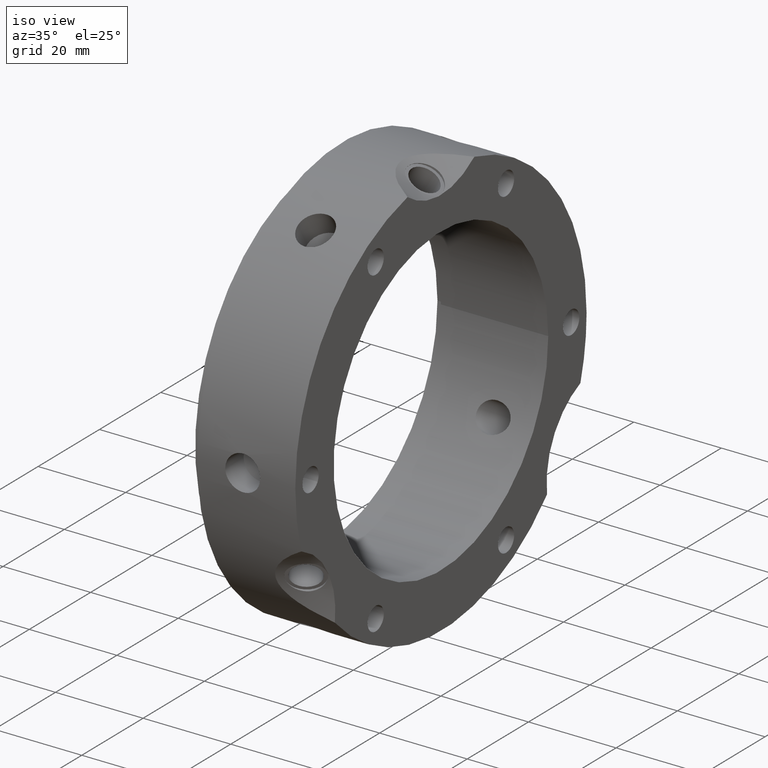
[diagram: clean part render]
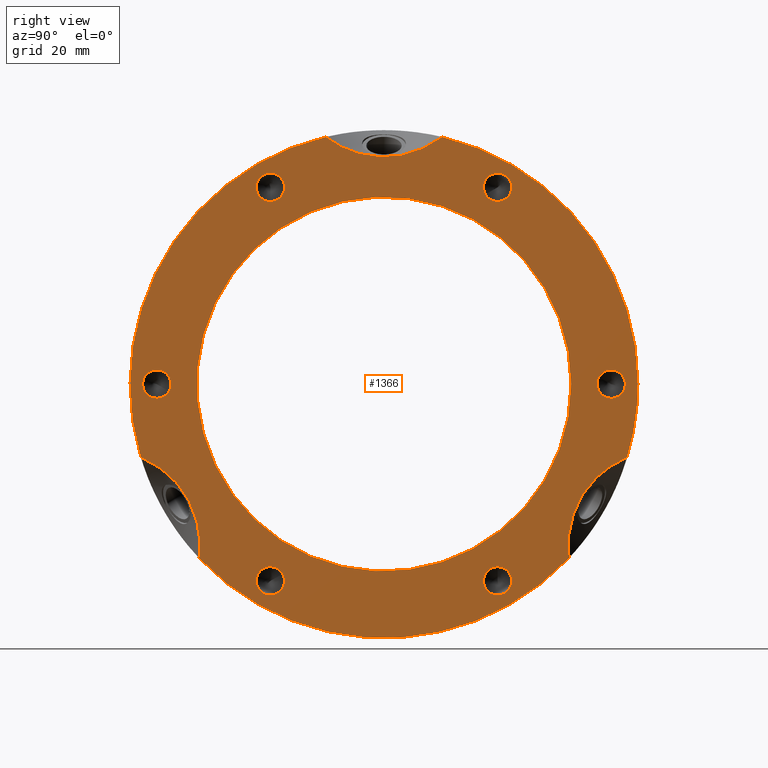
[diagram: tour spotlight — one face highlighted and labeled with its STEP entity id]
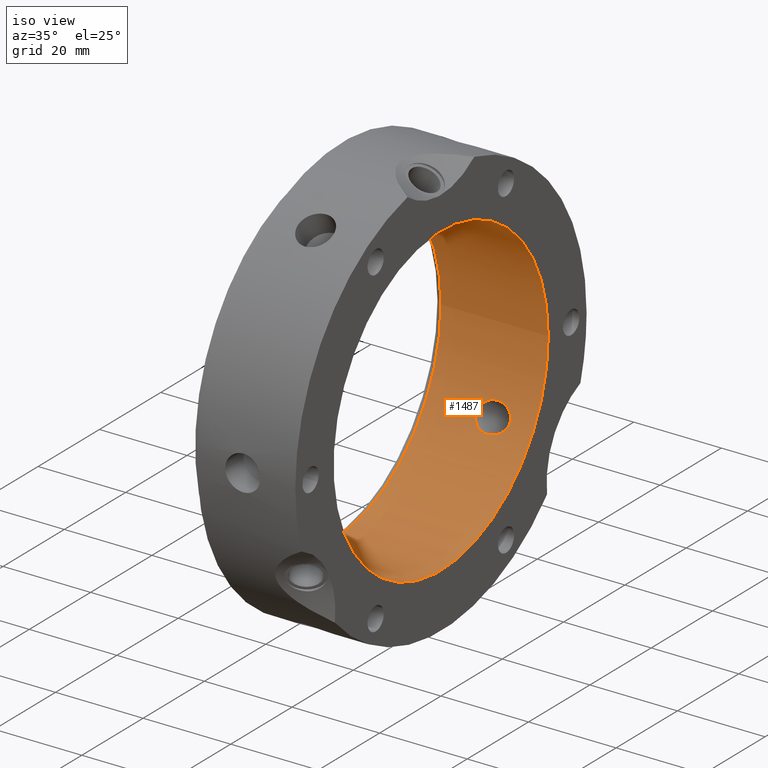
[diagram: tour spotlight — one face highlighted and labeled with its STEP entity id]
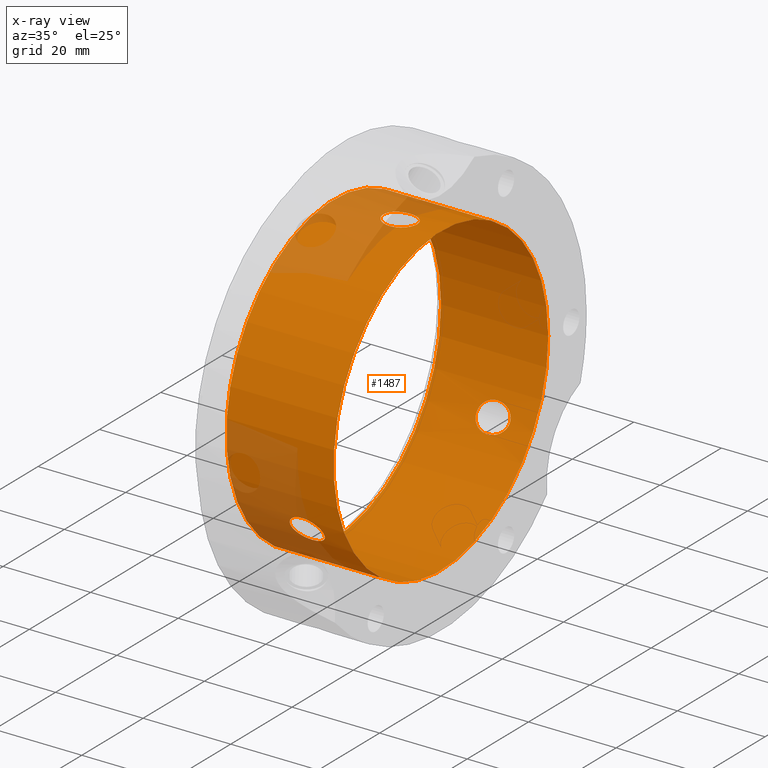
[diagram: x-ray of the same camera — body ghosted, this tour face saturated]
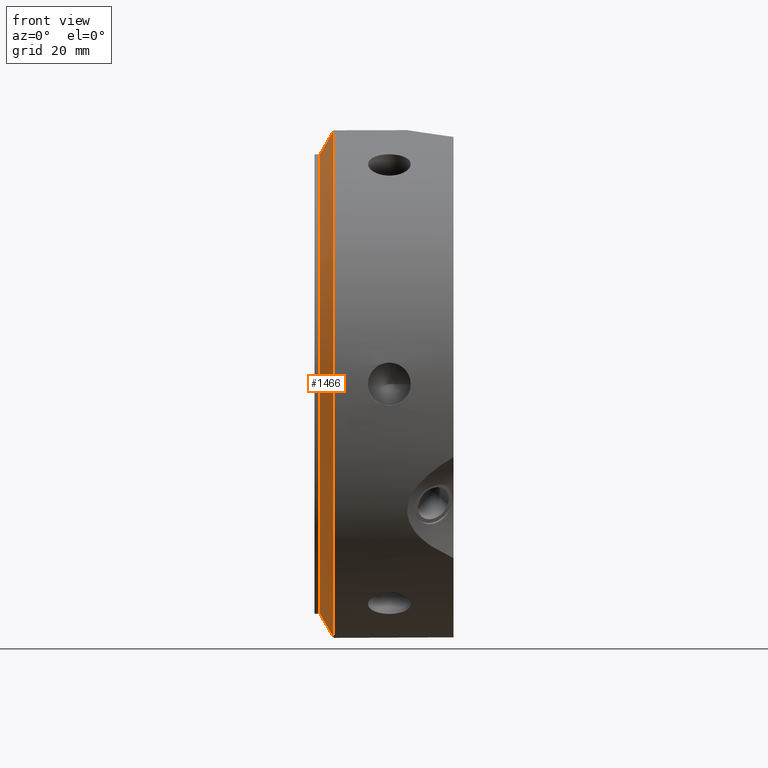
[diagram: tour spotlight — one face highlighted and labeled with its STEP entity id]
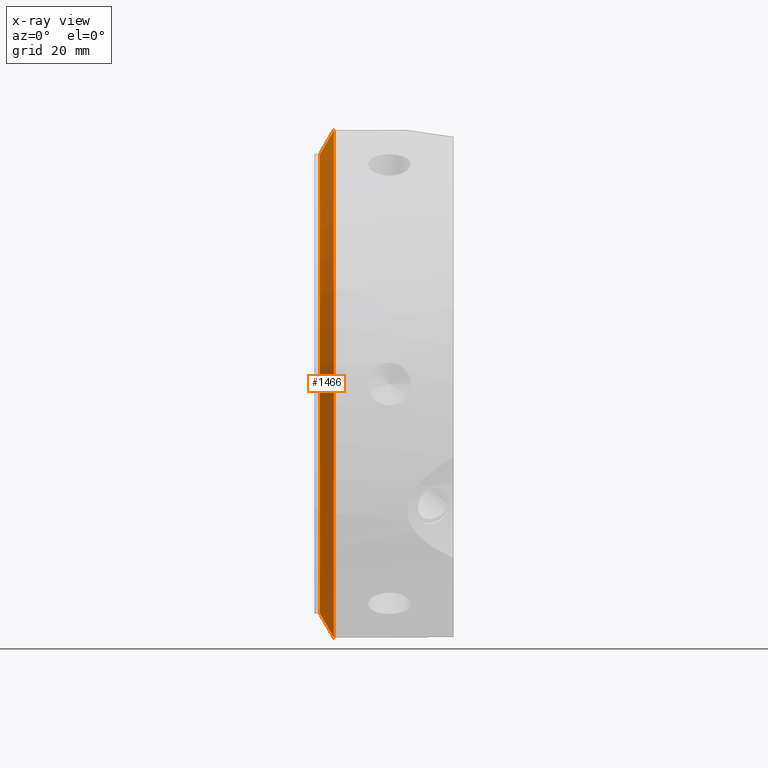
[diagram: x-ray of the same camera — body ghosted, this tour face saturated]
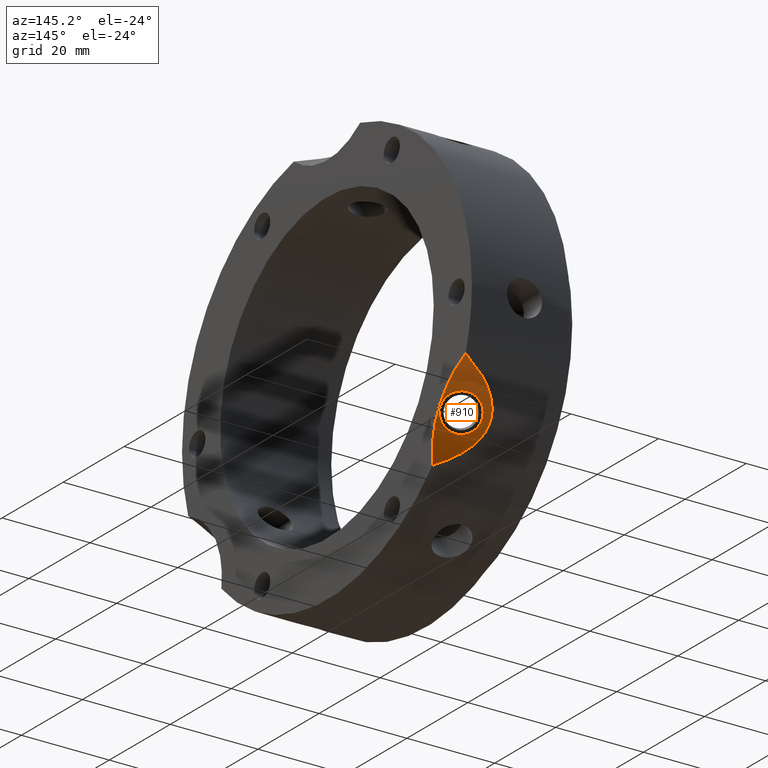
[diagram: tour spotlight — one face highlighted and labeled with its STEP entity id]
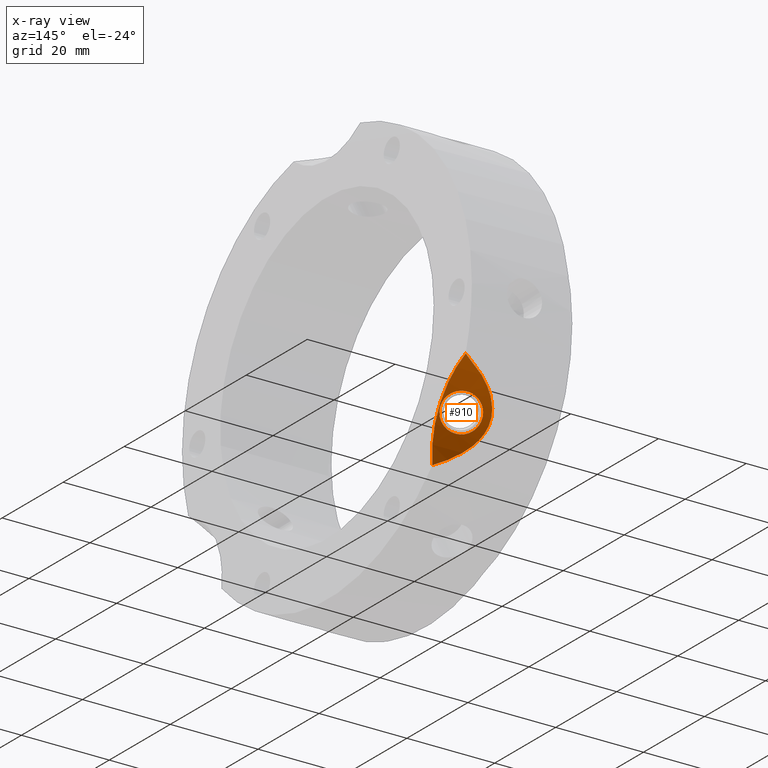
[diagram: x-ray of the same camera — body ghosted, this tour face saturated]
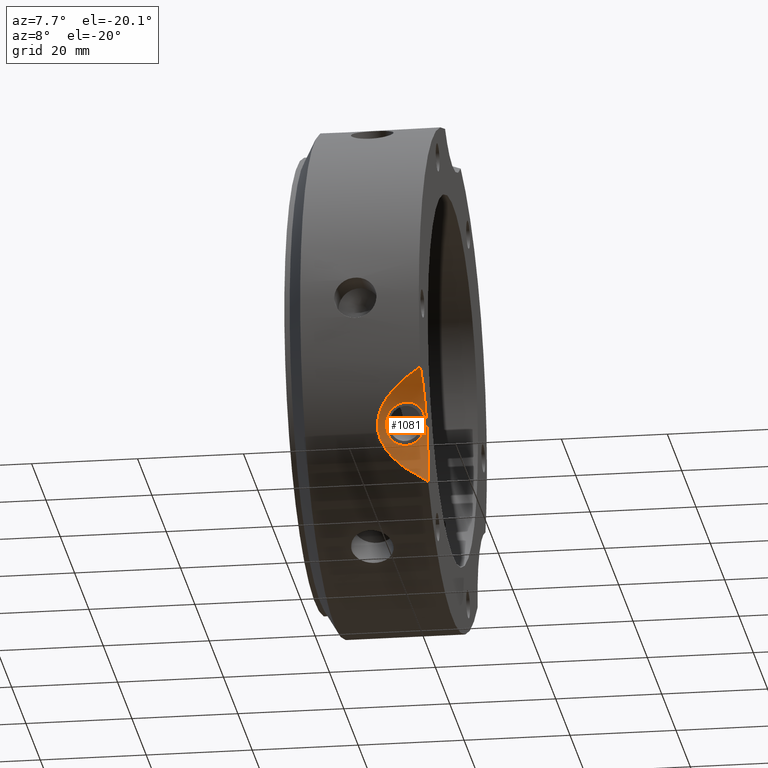
[diagram: tour spotlight — one face highlighted and labeled with its STEP entity id]
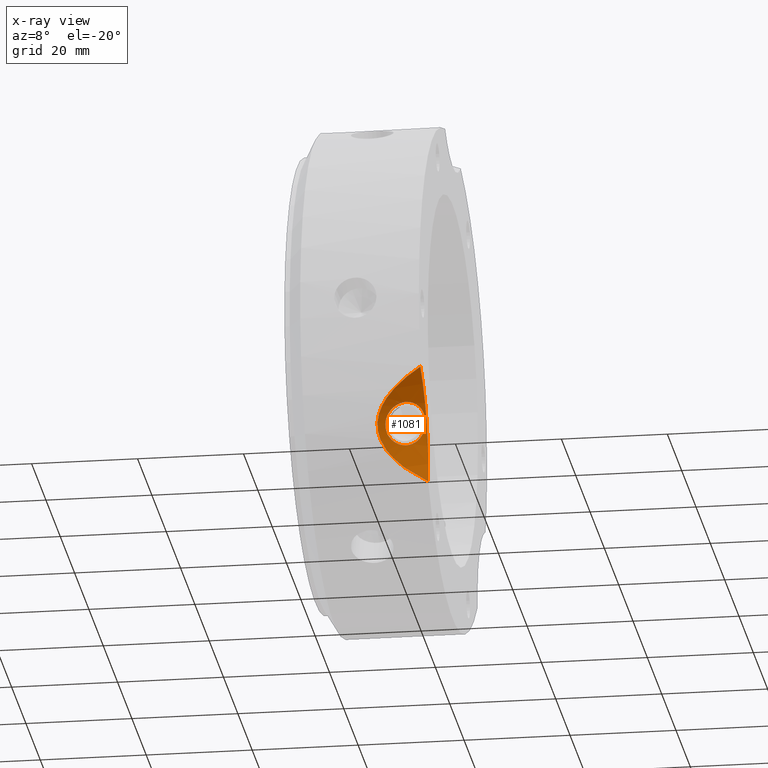
[diagram: x-ray of the same camera — body ghosted, this tour face saturated]
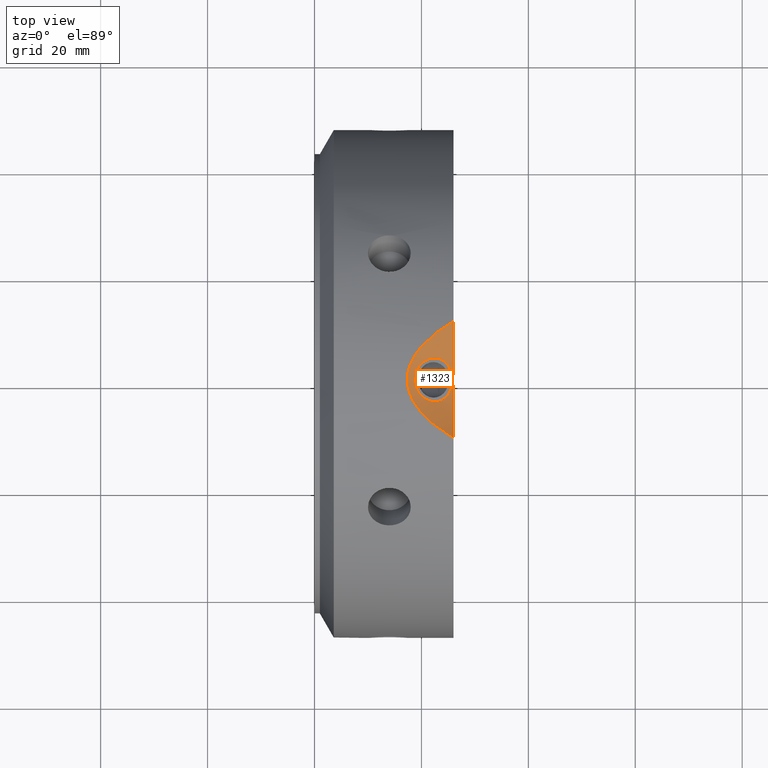
[diagram: tour spotlight — one face highlighted and labeled with its STEP entity id]
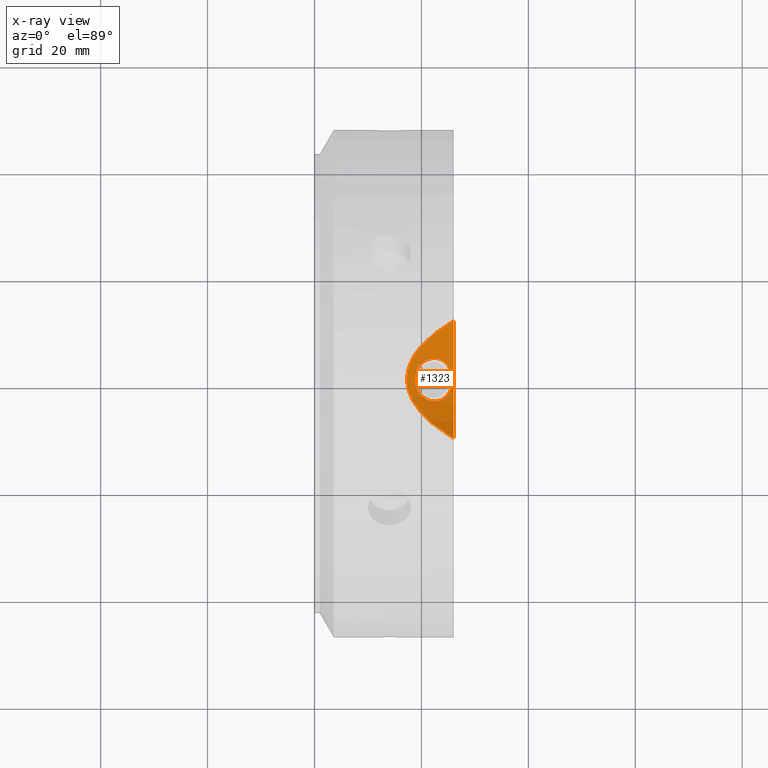
[diagram: x-ray of the same camera — body ghosted, this tour face saturated]
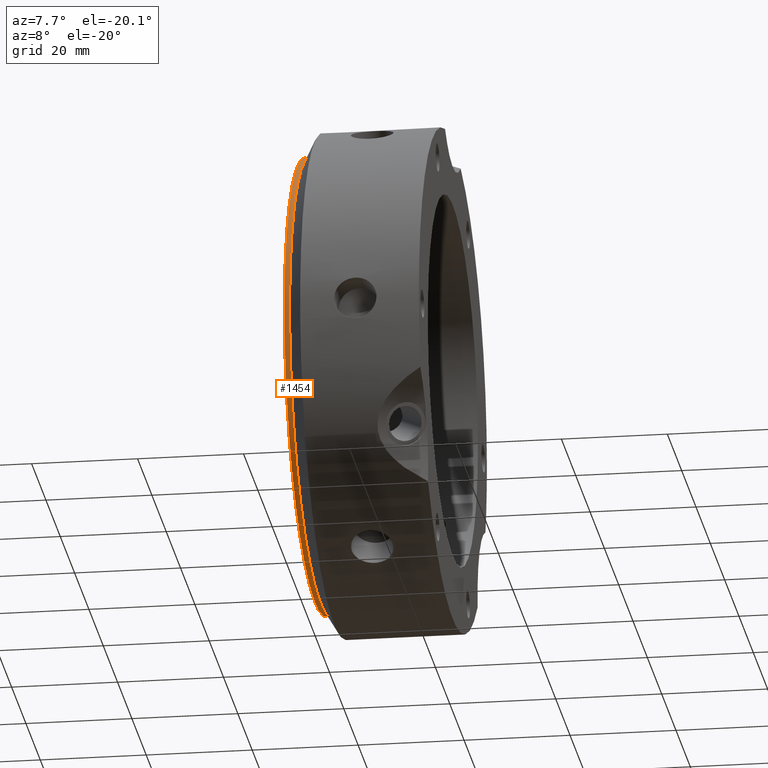
[diagram: tour spotlight — one face highlighted and labeled with its STEP entity id]
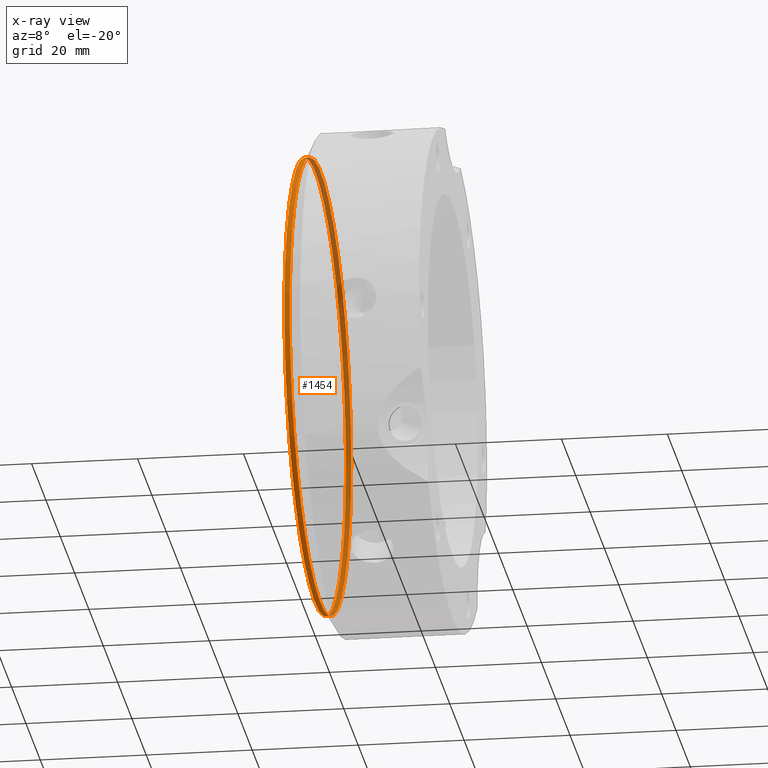
[diagram: x-ray of the same camera — body ghosted, this tour face saturated]
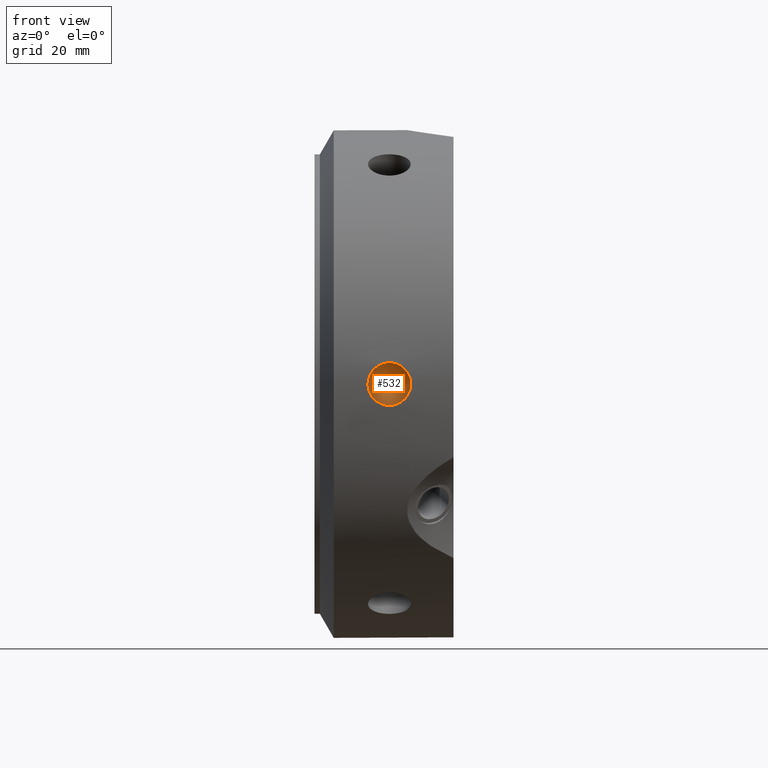
[diagram: tour spotlight — one face highlighted and labeled with its STEP entity id]
A machine part: a face-by-face anatomy tour. The part has 44 B-rep faces; the first image is the clean iso view, then the 8 largest visible faces are spotlighted one at a time (largest first), each with its STEP entity span.

Face 1 — right view, entity #1366. In plain terms, the highlighted planar face has unit normal (1, 0, 0).
Definition (entity closure, byte-faithful):
#165=CARTESIAN_POINT('',(25.999999999999986,18.95503267997125,35.481079660838645));
#166=VERTEX_POINT('',#165);
#167=CARTESIAN_POINT('',(25.999999999999986,21.250000000000018,36.806079660838641));
#168=DIRECTION('',(-1.0,0.0,0.0));
#169=DIRECTION('',(0.0,-0.866025403784439,-0.499999999999999));
#170=AXIS2_PLACEMENT_3D('',#167,#168,#169);
#171=CIRCLE('',#170,2.65);
#172=EDGE_CURVE('',#166,#166,#171,.T.);
#277=CARTESIAN_POINT('',(25.999999999999986,40.205032679971247,1.325000000000001));
#278=VERTEX_POINT('',#277);
#279=CARTESIAN_POINT('',(25.999999999999986,42.500000000000007,0.0));
#280=DIRECTION('',(-1.0,0.0,0.0));
#281=DIRECTION('',(0.0,-0.866025403784438,0.5));
#282=AXIS2_PLACEMENT_3D('',#279,#280,#281);
#283=CIRCLE('',#282,2.65);
#284=EDGE_CURVE('',#278,#278,#283,.T.);
#389=CARTESIAN_POINT('',(25.999999999999986,21.250000000000018,-34.156079660838643));
#390=VERTEX_POINT('',#389);
#391=CARTESIAN_POINT('',(25.999999999999986,21.250000000000018,-36.806079660838648));
#392=DIRECTION('',(-1.0,0.0,0.0));
#393=DIRECTION('',(0.0,0.0,1.0));
#394=AXIS2_PLACEMENT_3D('',#391,#392,#393);
#395=CIRCLE('',#394,2.65);
#396=EDGE_CURVE('',#390,#390,#395,.T.);
#501=CARTESIAN_POINT('',(25.999999999999986,-18.955032679971232,-35.48107966083866));
#502=VERTEX_POINT('',#501);
#503=CARTESIAN_POINT('',(25.999999999999986,-21.249999999999996,-36.806079660838655));
#504=DIRECTION('',(-1.0,0.0,0.0));
#505=DIRECTION('',(0.0,0.866025403784439,0.5));
#506=AXIS2_PLACEMENT_3D('',#503,#504,#505);
#507=CIRCLE('',#506,2.65);
#508=EDGE_CURVE('',#502,#502,#507,.T.);
#613=CARTESIAN_POINT('',(25.999999999999986,-40.205032679971247,-1.325000000000016));
#614=VERTEX_POINT('',#613);
#615=CARTESIAN_POINT('',(25.999999999999986,-42.500000000000007,-1.554312E-014));
#616=DIRECTION('',(-1.0,0.0,0.0));
#617=DIRECTION('',(0.0,0.866025403784438,-0.5));
#618=AXIS2_PLACEMENT_3D('',#615,#616,#617);
#619=CIRCLE('',#618,2.65);
#620=EDGE_CURVE('',#614,#614,#619,.T.);
#650=CARTESIAN_POINT('',(25.999999999999986,-21.250000000000021,34.156079660838635));
#651=VERTEX_POINT('',#650);
#652=CARTESIAN_POINT('',(25.999999999999986,-21.250000000000021,36.806079660838634));
#653=DIRECTION('',(-1.0,0.0,0.0));
#654=DIRECTION('',(0.0,0.0,-1.0));
#655=AXIS2_PLACEMENT_3D('',#652,#653,#654);
#656=CIRCLE('',#655,2.65);
#657=EDGE_CURVE('',#651,#651,#656,.T.);
#873=CARTESIAN_POINT('',(25.999999999999986,34.587556014336464,-32.556888195205907));
#874=VERTEX_POINT('',#873);
#875=CARTESIAN_POINT('',(25.999999999999982,45.488870252386242,-13.6752580656297));
#876=VERTEX_POINT('',#875);
#877=CARTESIAN_POINT('',(25.999999999999986,56.806079660838648,-32.797005383792552));
#878=DIRECTION('',(-1.0,0.0,0.0));
#879=DIRECTION('',(0.0,-0.866025403784438,0.5));
#880=AXIS2_PLACEMENT_3D('',#877,#878,#879);
#881=ELLIPSE('',#880,23.094010767585043,20.0);
#882=EDGE_CURVE('',#874,#876,#881,.T.);
#1044=CARTESIAN_POINT('',(25.999999999999986,-45.488870252386249,-13.675258065629665));
#1045=VERTEX_POINT('',#1044);
#1046=CARTESIAN_POINT('',(25.999999999999986,-34.587556014336464,-32.556888195205907));
#1047=VERTEX_POINT('',#1046);
#1048=CARTESIAN_POINT('',(25.999999999999986,-56.806079660838662,-32.797005383792516));
#1049=DIRECTION('',(-1.0,0.0,0.0));
#1050=DIRECTION('',(0.0,0.866025403784439,0.5));
#1051=AXIS2_PLACEMENT_3D('',#1048,#1049,#1050);
#1052=ELLIPSE('',#1051,23.094010767585047,20.000000000000004);
#1053=EDGE_CURVE('',#1045,#1047,#1052,.T.);
#1123=CARTESIAN_POINT('',(25.999999999999986,0.0,0.0));
#1124=DIRECTION('',(1.0,0.0,0.0));
#1125=DIRECTION('',(0.0,1.0,0.0));
#1126=AXIS2_PLACEMENT_3D('',#1123,#1124,#1125);
#1127=CIRCLE('',#1126,47.5);
#1128=EDGE_CURVE('',#1047,#874,#1127,.T.);
#1131=CARTESIAN_POINT('',(25.999999999999986,-10.901314238049778,46.232146260835584));
#1132=VERTEX_POINT('',#1131);
#1133=CARTESIAN_POINT('',(25.999999999999986,0.0,0.0));
#1134=DIRECTION('',(1.0,0.0,0.0));
#1135=DIRECTION('',(0.0,1.0,0.0));
#1136=AXIS2_PLACEMENT_3D('',#1133,#1134,#1135);
#1137=CIRCLE('',#1136,47.5);
#1138=EDGE_CURVE('',#1132,#1045,#1137,.T.);
#1140=CARTESIAN_POINT('',(25.999999999999986,10.901314238049778,46.232146260835584));
#1141=VERTEX_POINT('',#1140);
#1167=CARTESIAN_POINT('',(25.999999999999986,0.0,0.0));
#1168=DIRECTION('',(1.0,0.0,0.0));
#1169=DIRECTION('',(0.0,1.0,0.0));
#1170=AXIS2_PLACEMENT_3D('',#1167,#1168,#1169);
#1171=CIRCLE('',#1170,47.5);
#1172=EDGE_CURVE('',#876,#1141,#1171,.T.);
#1310=CARTESIAN_POINT('',(25.999999999999986,0.0,65.594010767585047));
#1311=DIRECTION('',(-1.0,0.0,0.0));
#1312=DIRECTION('',(0.0,0.0,-1.0));
#1313=AXIS2_PLACEMENT_3D('',#1310,#1311,#1312);
#1314=ELLIPSE('',#1313,23.094010767585047,20.0);
#1315=EDGE_CURVE('',#1141,#1132,#1314,.T.);
#1324=CARTESIAN_POINT('',(25.999999999999986,41.25,0.0));
#1325=DIRECTION('',(1.0,0.0,0.0));
#1326=DIRECTION('',(0.0,0.0,-1.0));
#1327=AXIS2_PLACEMENT_3D('',#1324,#1325,#1326);
#1328=PLANE('',#1327);
#1329=ORIENTED_EDGE('',*,*,#882,.T.);
#1330=ORIENTED_EDGE('',*,*,#1172,.T.);
#1331=ORIENTED_EDGE('',*,*,#1315,.T.);
#1332=ORIENTED_EDGE('',*,*,#1138,.T.);
#1333=ORIENTED_EDGE('',*,*,#1053,.T.);
#1334=ORIENTED_EDGE('',*,*,#1128,.T.);
#1335=EDGE_LOOP('',(#1329,#1330,#1331,#1332,#1333,#1334));
#1336=FACE_OUTER_BOUND('',#1335,.T.);
#1337=ORIENTED_EDGE('',*,*,#172,.T.);
#1338=EDGE_LOOP('',(#1337));
#1339=FACE_BOUND('',#1338,.T.);
#1340=ORIENTED_EDGE('',*,*,#284,.T.);
#1341=EDGE_LOOP('',(#1340));
#1342=FACE_BOUND('',#1341,.T.);
#1343=ORIENTED_EDGE('',*,*,#396,.T.);
#1344=EDGE_LOOP('',(#1343));
#1345=FACE_BOUND('',#1344,.T.);
#1346=ORIENTED_EDGE('',*,*,#508,.T.);
#1347=EDGE_LOOP('',(#1346));
#1348=FACE_BOUND('',#1347,.T.);
#1349=ORIENTED_EDGE('',*,*,#620,.T.);
#1350=EDGE_LOOP('',(#1349));
#1351=FACE_BOUND('',#1350,.T.);
#1352=ORIENTED_EDGE('',*,*,#657,.T.);
#1353=EDGE_LOOP('',(#1352));
#1354=FACE_BOUND('',#1353,.T.);
#1355=CARTESIAN_POINT('',(25.999999999999993,35.0,0.0));
#1356=VERTEX_POINT('',#1355);
#1357=CARTESIAN_POINT('',(25.999999999999993,0.0,0.0));
#1358=DIRECTION('',(1.0,0.0,0.0));
#1359=DIRECTION('',(0.0,1.0,0.0));
#1360=AXIS2_PLACEMENT_3D('',#1357,#1358,#1359);
#1361=CIRCLE('',#1360,35.0);
#1362=EDGE_CURVE('',#1356,#1356,#1361,.T.);
#1363=ORIENTED_EDGE('',*,*,#1362,.F.);
#1364=EDGE_LOOP('',(#1363));
#1365=FACE_BOUND('',#1364,.T.);
#1366=ADVANCED_FACE('',(#1336,#1339,#1342,#1345,#1348,#1351,#1354,#1365),#1328,.T.);

Face 2 — iso view, entity #1487. An x-ray twin of the same camera follows (body ghosted, this face saturated) — the face is partly hidden behind the body. In plain terms, the highlighted cylindrical surface (bore or boss wall) has radius 35 mm, axis along (1, 0, 0).
Definition (entity closure, byte-faithful):
#745=CARTESIAN_POINT('',(16.615950120488979,31.835675180733439,-14.542688396126518));
#746=VERTEX_POINT('',#745);
#747=CARTESIAN_POINT('',(16.615950120488979,31.835675180733439,-14.542688396126518));
#748=CARTESIAN_POINT('',(17.111227764587902,31.835675180733439,-14.542688396126518));
#749=CARTESIAN_POINT('',(17.643145130150234,31.799527693646247,-14.622683549739863));
#750=CARTESIAN_POINT('',(18.63589393471527,31.646414143155582,-14.951164093763659));
#751=CARTESIAN_POINT('',(19.096772955483232,31.529164668278582,-15.199373453907201));
#752=CARTESIAN_POINT('',(19.77564372018762,31.259991035573051,-15.744522877487954));
#753=CARTESIAN_POINT('',(20.059132226389501,31.100267410540603,-16.06017610789597));
#754=CARTESIAN_POINT('',(20.444239409035504,30.730054838065822,-16.757673465674301));
#755=CARTESIAN_POINT('',(20.544906660940367,30.518911328528088,-17.139694987299983));
#756=CARTESIAN_POINT('',(20.544906660940367,30.102866936382608,-17.860305012700056));
#757=CARTESIAN_POINT('',(20.444239409035504,29.877598348631253,-18.234171416616775));
#758=CARTESIAN_POINT('',(20.059132226389501,29.458654203960087,-18.903533588069486));
#759=CARTESIAN_POINT('',(19.775643720187624,29.265152300156348,-19.199684920136143));
#760=CARTESIAN_POINT('',(19.096772955483235,28.927625866829736,-19.705370835878448));
#761=CARTESIAN_POINT('',(18.635893934715273,28.771294992926851,-19.931016539774081));
#762=CARTESIAN_POINT('',(17.643145130150238,28.563379272398638,-20.22785703617453));
#763=CARTESIAN_POINT('',(17.111227764587905,28.512175180733429,-20.299159255081683));
#764=CARTESIAN_POINT('',(16.13895833598075,28.512175180733429,-20.299159255081683));
#765=CARTESIAN_POINT('',(15.625654320450423,28.559968473946387,-20.232629024622501));
#766=CARTESIAN_POINT('',(14.673307747018614,28.762326408162945,-19.943912755980065));
#767=CARTESIAN_POINT('',(14.234416399945026,28.916815563459618,-19.721175321451572));
#768=CARTESIAN_POINT('',(13.586131449496875,29.256189252795231,-19.213428782742909));
#769=CARTESIAN_POINT('',(13.318200271341205,29.453845072389342,-18.911126773247599));
#770=CARTESIAN_POINT('',(12.959889934864243,29.87796600724948,-18.233673589791739));
#771=CARTESIAN_POINT('',(12.869612182333475,30.104060865932549,-17.858237066058898));
#772=CARTESIAN_POINT('',(12.869612182333475,30.517717398978135,-17.141762933941138));
#773=CARTESIAN_POINT('',(12.959889934864247,30.72980753669777,-16.758240780790128));
#774=CARTESIAN_POINT('',(13.318200271341208,31.104438736015116,-16.05221468519651));
#775=CARTESIAN_POINT('',(13.586131449496882,31.267412046056087,-15.729888719474525));
#776=CARTESIAN_POINT('',(14.234416399945031,31.537446602593604,-15.182109213779507));
#777=CARTESIAN_POINT('',(14.673307747018619,31.653098301620709,-14.936948963419137));
#778=CARTESIAN_POINT('',(15.625654320450423,31.801954957642625,-14.617343717409042));
#779=CARTESIAN_POINT('',(16.138958335980753,31.835675180733439,-14.542688396126518));
#780=CARTESIAN_POINT('',(16.615950120488982,31.835675180733439,-14.542688396126518));
#781=B_SPLINE_CURVE_WITH_KNOTS('',3,(#747,#748,#749,#750,#751,#752,#753,#754,#755,#756,#757,#758,#759,#760,#761,#762,#763,#764,#765,#766,#767,#768,#769,#770,#771,#772,#773,#774,#775,#776,#777,#778,#779,#780),.UNSPECIFIED.,.T.,.U.,(4,2,2,2,2,2,2,2,2,2,2,2,2,2,2,2,4),(0.0,0.148583293229678,0.297166586459355,0.421979904102998,0.54679322174664,0.671606539390283,0.796419857033926,0.945003150263603,1.093586443493281,1.23668397884575,1.379781514198219,1.503878474111896,1.627975434025574,1.752072393939252,1.876169353852929,2.019266889205398,2.162364424557866),.UNSPECIFIED.);
#782=EDGE_CURVE('',#746,#746,#781,.T.);
#916=CARTESIAN_POINT('',(16.615950120488986,-28.51217518073345,-20.299159255081662));
#917=VERTEX_POINT('',#916);
#918=CARTESIAN_POINT('',(16.615950120488986,-28.51217518073345,-20.299159255081662));
#919=CARTESIAN_POINT('',(17.111227764587909,-28.51217518073345,-20.299159255081662));
#920=CARTESIAN_POINT('',(17.643145130150238,-28.563379272398656,-20.227857036174498));
#921=CARTESIAN_POINT('',(18.63589393471527,-28.771294992926869,-19.931016539774053));
#922=CARTESIAN_POINT('',(19.096772955483235,-28.927625866829754,-19.705370835878426));
#923=CARTESIAN_POINT('',(19.77564372018762,-29.265152300156359,-19.199684920136121));
#924=CARTESIAN_POINT('',(20.059132226389494,-29.458654203960094,-18.903533588069465));
#925=CARTESIAN_POINT('',(20.444239409035497,-29.877598348631263,-18.234171416616753));
#926=CARTESIAN_POINT('',(20.544906660940363,-30.102866936382618,-17.860305012700028));
#927=CARTESIAN_POINT('',(20.544906660940363,-30.518911328528095,-17.139694987299954));
#928=CARTESIAN_POINT('',(20.444239409035504,-30.73005483806584,-16.757673465674273));
#929=CARTESIAN_POINT('',(20.059132226389501,-31.100267410540617,-16.060176107895941));
#930=CARTESIAN_POINT('',(19.77564372018762,-31.259991035573073,-15.744522877487928));
#931=CARTESIAN_POINT('',(19.096772955483232,-31.529164668278597,-15.199373453907175));
#932=CARTESIAN_POINT('',(18.63589393471527,-31.646414143155592,-14.951164093763641));
#933=CARTESIAN_POINT('',(17.643145130150241,-31.799527693646258,-14.622683549739843));
#934=CARTESIAN_POINT('',(17.111227764587909,-31.835675180733453,-14.542688396126493));
#935=CARTESIAN_POINT('',(16.152784167235467,-31.835675180733453,-14.542688396126493));
#936=CARTESIAN_POINT('',(15.65371492234512,-31.803861362336043,-14.61308277074178));
#937=CARTESIAN_POINT('',(14.723548931125642,-31.663230002107888,-14.915349523190194));
#938=CARTESIAN_POINT('',(14.292605577663068,-31.553923118446889,-15.147466001234594));
#939=CARTESIAN_POINT('',(13.629970285374778,-31.291612170411987,-15.681728952375817));
#940=CARTESIAN_POINT('',(13.346188912621086,-31.1262304102043,-16.010171328220665));
#941=CARTESIAN_POINT('',(12.965972086414849,-30.742988626792936,-16.734289817934396));
#942=CARTESIAN_POINT('',(12.869612182333475,-30.524651377259985,-17.129752931258398));
#943=CARTESIAN_POINT('',(12.869612182333475,-30.097126887650731,-17.87024706874158));
#944=CARTESIAN_POINT('',(12.965972086414851,-29.863814410018932,-18.25706423009154));
#945=CARTESIAN_POINT('',(13.346188912621088,-29.428330294282503,-18.951020595174302));
#946=CARTESIAN_POINT('',(13.629970285374782,-29.226581733225395,-19.258466588759163));
#947=CARTESIAN_POINT('',(14.292605577663071,-28.895051919253703,-19.752766009018778));
#948=CARTESIAN_POINT('',(14.723548931125638,-28.748686594460779,-19.963486786099924));
#949=CARTESIAN_POINT('',(15.653714922345117,-28.557231588235112,-20.236410492850474));
#950=CARTESIAN_POINT('',(16.152784167235467,-28.51217518073345,-20.299159255081655));
#951=CARTESIAN_POINT('',(16.615950120488982,-28.51217518073345,-20.299159255081655));
#952=B_SPLINE_CURVE_WITH_KNOTS('',3,(#918,#919,#920,#921,#922,#923,#924,#925,#926,#927,#928,#929,#930,#931,#932,#933,#934,#935,#936,#937,#938,#939,#940,#941,#942,#943,#944,#945,#946,#947,#948,#949,#950,#951),.UNSPECIFIED.,.T.,.U.,(4,2,2,2,2,2,2,2,2,2,2,2,2,2,2,2,4),(0.0,0.148583293229677,0.297166586459355,0.421979904102997,0.54679322174664,0.671606539390283,0.796419857033926,0.945003150263603,1.09358644349328,1.232536229469335,1.371486015445389,1.499743362328166,1.628000709210943,1.756258056093719,1.884515402976496,2.02346518895255,2.162414974928606),.UNSPECIFIED.);
#953=EDGE_CURVE('',#917,#917,#952,.T.);
#1182=CARTESIAN_POINT('',(16.615950120488986,-3.3235,34.841847651208163));
#1183=VERTEX_POINT('',#1182);
#1184=CARTESIAN_POINT('',(16.615950120488986,-3.3235,34.841847651208163));
#1185=CARTESIAN_POINT('',(17.111227764587909,-3.3235,34.841847651208163));
#1186=CARTESIAN_POINT('',(17.643145130150238,-3.236148421247607,34.850540585914359));
#1187=CARTESIAN_POINT('',(18.63589393471527,-2.875119150228733,34.882180633537715));
#1188=CARTESIAN_POINT('',(19.096772955483235,-2.601538801448848,34.904744289785619));
#1189=CARTESIAN_POINT('',(19.775643720187624,-1.994838735416709,34.944207797624067));
#1190=CARTESIAN_POINT('',(20.059132226389504,-1.641613206580516,34.963709695965427));
#1191=CARTESIAN_POINT('',(20.444239409035507,-0.852456489434565,34.991844882291041));
#1192=CARTESIAN_POINT('',(20.54490666094037,-0.416044392145476,35.0));
#1193=CARTESIAN_POINT('',(20.54490666094037,0.416044392145476,35.0));
#1194=CARTESIAN_POINT('',(20.444239409035507,0.852456489434565,34.991844882291041));
#1195=CARTESIAN_POINT('',(20.059132226389504,1.641613206580516,34.963709695965427));
#1196=CARTESIAN_POINT('',(19.775643720187624,1.994838735416708,34.944207797624067));
#1197=CARTESIAN_POINT('',(19.096772955483235,2.601538801448847,34.904744289785619));
#1198=CARTESIAN_POINT('',(18.63589393471527,2.875119150228733,34.882180633537715));
#1199=CARTESIAN_POINT('',(17.643145130150238,3.236148421247607,34.850540585914359));
#1200=CARTESIAN_POINT('',(17.111227764587909,3.3235,34.841847651208163));
#1201=CARTESIAN_POINT('',(16.152784167235467,3.3235,34.841847651208163));
#1202=CARTESIAN_POINT('',(15.653714922345117,3.246629774100938,34.849493263592272));
#1203=CARTESIAN_POINT('',(14.723548931125636,2.91454340764711,34.878836309290136));
#1204=CARTESIAN_POINT('',(14.292605577663071,2.658871199193183,34.90023201025339));
#1205=CARTESIAN_POINT('',(13.62997028537478,2.065030437186593,34.940195541135004));
#1206=CARTESIAN_POINT('',(13.346188912621088,1.697900115921794,34.961191923394985));
#1207=CARTESIAN_POINT('',(12.965972086414851,0.879174216773997,34.991354048025954));
#1208=CARTESIAN_POINT('',(12.869612182333476,0.427524489609256,35.0));
#1209=CARTESIAN_POINT('',(12.869612182333476,-0.413656533045592,35.0));
#1210=CARTESIAN_POINT('',(12.959889934864249,-0.851841529448287,34.991914370581839));
#1211=CARTESIAN_POINT('',(13.31820027134121,-1.650593663625772,34.963341458444084));
#1212=CARTESIAN_POINT('',(13.586131449496879,-2.011222793260847,34.943317502217404));
#1213=CARTESIAN_POINT('',(14.234416399945029,-2.620631039133976,34.903284535231052));
#1214=CARTESIAN_POINT('',(14.673307747018615,-2.890771893457758,34.880861719399164));
#1215=CARTESIAN_POINT('',(15.625654320450424,-3.241986483696238,34.849972742031497));
#1216=CARTESIAN_POINT('',(16.138958335980757,-3.3235,34.841847651208163));
#1217=CARTESIAN_POINT('',(16.615950120488986,-3.3235,34.841847651208163));
#1218=B_SPLINE_CURVE_WITH_KNOTS('',3,(#1184,#1185,#1186,#1187,#1188,#1189,#1190,#1191,#1192,#1193,#1194,#1195,#1196,#1197,#1198,#1199,#1200,#1201,#1202,#1203,#1204,#1205,#1206,#1207,#1208,#1209,#1210,#1211,#1212,#1213,#1214,#1215,#1216,#1217),.UNSPECIFIED.,.T.,.U.,(4,2,2,2,2,2,2,2,2,2,2,2,2,2,2,2,4),(0.0,0.148583293229677,0.297166586459354,0.421979904102997,0.54679322174664,0.671606539390283,0.796419857033926,0.945003150263603,1.093586443493281,1.232536229469335,1.37148601544539,1.499743362328167,1.628000709210944,1.752097669124622,1.876194629038299,2.019292164390768,2.162389699743237),.UNSPECIFIED.);
#1219=EDGE_CURVE('',#1183,#1183,#1218,.T.);
#1355=CARTESIAN_POINT('',(25.999999999999993,35.0,0.0));
#1356=VERTEX_POINT('',#1355);
#1357=CARTESIAN_POINT('',(25.999999999999993,0.0,0.0));
#1358=DIRECTION('',(1.0,0.0,0.0));
#1359=DIRECTION('',(0.0,1.0,0.0));
#1360=AXIS2_PLACEMENT_3D('',#1357,#1358,#1359);
#1361=CIRCLE('',#1360,35.0);
#1362=EDGE_CURVE('',#1356,#1356,#1361,.T.);
#1383=CARTESIAN_POINT('',(1.49999999999999,35.0,0.0));
#1384=VERTEX_POINT('',#1383);
#1385=CARTESIAN_POINT('',(1.49999999999999,0.0,0.0));
#1386=DIRECTION('',(1.0,0.0,0.0));
#1387=DIRECTION('',(0.0,1.0,0.0));
#1388=AXIS2_PLACEMENT_3D('',#1385,#1386,#1387);
#1389=CIRCLE('',#1388,35.0);
#1390=EDGE_CURVE('',#1384,#1384,#1389,.T.);
#1467=CARTESIAN_POINT('',(13.749999999999991,0.0,0.0));
#1468=DIRECTION('',(1.0,0.0,0.0));
#1469=DIRECTION('',(0.0,1.0,0.0));
#1470=AXIS2_PLACEMENT_3D('',#1467,#1468,#1469);
#1471=CYLINDRICAL_SURFACE('',#1470,35.0);
#1472=ORIENTED_EDGE('',*,*,#1390,.F.);
#1473=EDGE_LOOP('',(#1472));
#1474=FACE_OUTER_BOUND('',#1473,.T.);
#1475=ORIENTED_EDGE('',*,*,#782,.T.);
#1476=EDGE_LOOP('',(#1475));
#1477=FACE_BOUND('',#1476,.T.);
#1478=ORIENTED_EDGE('',*,*,#953,.T.);
#1479=EDGE_LOOP('',(#1478));
#1480=FACE_BOUND('',#1479,.T.);
#1481=ORIENTED_EDGE('',*,*,#1219,.T.);
#1482=EDGE_LOOP('',(#1481));
#1483=FACE_BOUND('',#1482,.T.);
#1484=ORIENTED_EDGE('',*,*,#1362,.T.);
#1485=EDGE_LOOP('',(#1484));
#1486=FACE_BOUND('',#1485,.T.);
#1487=ADVANCED_FACE('',(#1474,#1477,#1480,#1483,#1486),#1471,.F.);

Face 3 — front view, entity #1466. An x-ray twin of the same camera follows (body ghosted, this face saturated) — the face is partly hidden behind the body. In plain terms, the highlighted conical surface has half-angle 60 deg.
Definition (entity closure, byte-faithful):
#1087=CARTESIAN_POINT('',(3.598076211353298,47.5,0.0));
#1088=VERTEX_POINT('',#1087);
#1089=CARTESIAN_POINT('',(3.598076211353298,0.0,0.0));
#1090=DIRECTION('',(1.0,0.0,0.0));
#1091=DIRECTION('',(0.0,1.0,0.0));
#1092=AXIS2_PLACEMENT_3D('',#1089,#1090,#1091);
#1093=CIRCLE('',#1092,47.5);
#1094=EDGE_CURVE('',#1088,#1088,#1093,.T.);
#1440=CARTESIAN_POINT('',(0.999999999999987,43.0,0.0));
#1441=VERTEX_POINT('',#1440);
#1442=CARTESIAN_POINT('',(0.999999999999987,0.0,0.0));
#1443=DIRECTION('',(1.0,0.0,0.0));
#1444=DIRECTION('',(0.0,1.0,0.0));
#1445=AXIS2_PLACEMENT_3D('',#1442,#1443,#1444);
#1446=CIRCLE('',#1445,43.0);
#1447=EDGE_CURVE('',#1441,#1441,#1446,.T.);
#1455=CARTESIAN_POINT('',(2.299038105676643,0.0,0.0));
#1456=DIRECTION('',(1.0,0.0,0.0));
#1457=DIRECTION('',(0.0,1.0,0.0));
#1458=AXIS2_PLACEMENT_3D('',#1455,#1456,#1457);
#1459=CONICAL_SURFACE('',#1458,45.25,60.000000000000057);
#1460=ORIENTED_EDGE('',*,*,#1094,.F.);
#1461=EDGE_LOOP('',(#1460));
#1462=FACE_OUTER_BOUND('',#1461,.T.);
#1463=ORIENTED_EDGE('',*,*,#1447,.T.);
#1464=EDGE_LOOP('',(#1463));
#1465=FACE_BOUND('',#1464,.T.);
#1466=ADVANCED_FACE('',(#1462,#1465),#1459,.T.);

Face 4 — auxiliary view, entity #910. An x-ray twin of the same camera follows (body ghosted, this face saturated) — the face is partly hidden behind the body. In plain terms, the highlighted cylindrical surface (partial cylindrical patch) has radius 20 mm, axis along (-0.866, 0.433, -0.25).
Definition (entity closure, byte-faithful):
#814=CARTESIAN_POINT('',(22.490420099350914,41.035630149026325,-18.95765990555137));
#815=VERTEX_POINT('',#814);
#816=CARTESIAN_POINT('',(22.490420099350906,41.035630149026325,-18.95765990555137));
#817=CARTESIAN_POINT('',(22.937634988849855,40.812022704276849,-18.828560087132455));
#818=CARTESIAN_POINT('',(23.402485479667895,40.505291987550045,-18.770984072476132));
#819=CARTESIAN_POINT('',(24.236524718146235,39.798064048176471,-18.846331355008836));
#820=CARTESIAN_POINT('',(24.606447319431041,39.398479511880211,-18.979692938220548));
#821=CARTESIAN_POINT('',(25.182309034226119,38.640935116600417,-19.38108615052904));
#822=CARTESIAN_POINT('',(25.427144292643522,38.232036396758716,-19.676236079347419));
#823=CARTESIAN_POINT('',(25.750123505230103,37.486117642801474,-20.411520371149301));
#824=CARTESIAN_POINT('',(25.828743985935535,37.149891303485269,-20.852250178343247));
#825=CARTESIAN_POINT('',(25.828743985935535,36.633524032256453,-21.746624527477248));
#826=CARTESIAN_POINT('',(25.750123505230107,36.419953992679574,-22.2581699823435));
#827=CARTESIAN_POINT('',(25.427144292643526,36.156138493954117,-23.271796718330641));
#828=CARTESIAN_POINT('',(25.182309034226115,36.104980517593084,-23.773488361697687));
#829=CARTESIAN_POINT('',(24.606447319431041,36.136135996467189,-24.630237658658764));
#830=CARTESIAN_POINT('',(24.236524718146235,36.220433745665069,-25.0429688096566));
#831=CARTESIAN_POINT('',(23.402485479667895,36.508795054572403,-25.693119812686582));
#832=CARTESIAN_POINT('',(22.937634988849858,36.712022704276848,-25.929968398164846));
#833=CARTESIAN_POINT('',(22.043205209851962,37.159237593775785,-26.188168035002668));
#834=CARTESIAN_POINT('',(21.555800781227315,37.432137403792687,-26.226211766563097));
#835=CARTESIAN_POINT('',(20.640986537847695,38.018202835814343,-26.080911277795067));
#836=CARTESIAN_POINT('',(20.214084094458237,38.332317608953602,-25.898203703817092));
#837=CARTESIAN_POINT('',(19.531803299983746,38.930233384714271,-25.404648865058867));
#838=CARTESIAN_POINT('',(19.230515299034714,39.254452990758537,-25.060609427094796));
#839=CARTESIAN_POINT('',(18.827974065125531,39.881028712731869,-24.256422403651101));
#840=CARTESIAN_POINT('',(18.727335674903152,40.184228187772661,-23.796624527477253));
#841=CARTESIAN_POINT('',(18.727335674903152,40.70059545900147,-22.902250178343255));
#842=CARTESIAN_POINT('',(18.827974065125531,40.94719236285377,-22.409772792456902));
#843=CARTESIAN_POINT('',(19.230515299034714,41.330350893563129,-21.465048788111574));
#844=CARTESIAN_POINT('',(19.531803299983746,41.466187983721596,-21.012246653890223));
#845=CARTESIAN_POINT('',(20.214084094458237,41.594661124366624,-20.247658983378884));
#846=CARTESIAN_POINT('',(20.640986537847695,41.595833138325759,-19.884273823147318));
#847=CARTESIAN_POINT('',(21.555800781227319,41.42863433677033,-19.304076026352647));
#848=CARTESIAN_POINT('',(22.043205209851969,41.259237593775786,-19.086759723970282));
#849=CARTESIAN_POINT('',(22.490420099350914,41.035630149026318,-18.95765990555137));
#850=B_SPLINE_CURVE_WITH_KNOTS('',3,(#816,#817,#818,#819,#820,#821,#822,#823,#824,#825,#826,#827,#828,#829,#830,#831,#832,#833,#834,#835,#836,#837,#838,#839,#840,#841,#842,#843,#844,#845,#846,#847,#848,#849),.UNSPECIFIED.,.T.,.U.,(4,2,2,2,2,2,2,2,2,2,2,2,2,2,2,2,4),(0.0,0.154919782102695,0.30983956420539,0.464749745574033,0.619659926942676,0.774570108311318,0.929480289679961,1.084400071782656,1.239319853885351,1.394239635988046,1.549159418090741,1.704069599459384,1.858979780828026,2.013889962196668,2.168800143565311,2.323719925668006,2.478639707770701),.UNSPECIFIED.);
#851=EDGE_CURVE('',#815,#815,#850,.T.);
#868=CARTESIAN_POINT('',(29.321507575751195,55.145325872963042,-31.838168737304876));
#869=DIRECTION('',(-0.866025403784438,0.43301270189222,-0.250000000000001));
#870=DIRECTION('',(-0.500000000000001,-0.749999999999999,0.433012701892219));
#871=AXIS2_PLACEMENT_3D('',#868,#869,#870);
#872=CYLINDRICAL_SURFACE('',#871,20.000000000000004);
#873=CARTESIAN_POINT('',(25.999999999999986,34.587556014336464,-32.556888195205907));
#874=VERTEX_POINT('',#873);
#875=CARTESIAN_POINT('',(25.999999999999982,45.488870252386242,-13.6752580656297));
#876=VERTEX_POINT('',#875);
#877=CARTESIAN_POINT('',(25.999999999999986,56.806079660838648,-32.797005383792552));
#878=DIRECTION('',(-1.0,0.0,0.0));
#879=DIRECTION('',(0.0,-0.866025403784438,0.5));
#880=AXIS2_PLACEMENT_3D('',#877,#878,#879);
#881=ELLIPSE('',#880,23.094010767585043,20.0);
#882=EDGE_CURVE('',#874,#876,#881,.T.);
#883=ORIENTED_EDGE('',*,*,#882,.F.);
#884=CARTESIAN_POINT('',(25.999999999999986,45.488870252386235,-13.675258065629707));
#885=CARTESIAN_POINT('',(25.00314135916846,45.316299798800515,-14.24929000966195));
#886=CARTESIAN_POINT('',(24.047230153161223,45.12261753978342,-14.854774890711695));
#887=CARTESIAN_POINT('',(21.694038090053986,44.541956084429764,-16.5368977002951));
#888=CARTESIAN_POINT('',(20.220225599003751,44.066118291939247,-17.798802015075658));
#889=CARTESIAN_POINT('',(18.583768462164496,43.132342476653832,-19.910891100705836));
#890=CARTESIAN_POINT('',(18.133074162779781,42.78410235715252,-20.651895575692013));
#891=CARTESIAN_POINT('',(17.51081573067605,42.013607340468184,-22.177398488511784));
#892=CARTESIAN_POINT('',(17.339745962155632,41.591158391407177,-22.96200052043811));
#893=CARTESIAN_POINT('',(17.339745962155632,40.681254968114473,-24.537999479561925));
#894=CARTESIAN_POINT('',(17.510815730676029,40.212994151135888,-25.296152017213956));
#895=CARTESIAN_POINT('',(18.133074162779756,39.277117383428973,-26.726171731561799));
#896=CARTESIAN_POINT('',(18.5837684621645,38.809508743523651,-27.39825875915994));
#897=CARTESIAN_POINT('',(20.220225599003761,37.447273847954776,-29.262976879451728));
#898=CARTESIAN_POINT('',(21.694038090053986,36.592351550454865,-30.306016653219515));
#899=CARTESIAN_POINT('',(24.047230153161223,35.425921192747211,-31.649945629345915));
#900=CARTESIAN_POINT('',(25.00314135916846,34.998397033659295,-32.120421826441955));
#901=CARTESIAN_POINT('',(25.999999999999986,34.587556014336457,-32.556888195205907));
#902=B_SPLINE_CURVE_WITH_KNOTS('',3,(#884,#885,#886,#887,#888,#889,#890,#891,#892,#893,#894,#895,#896,#897,#898,#899,#900,#901),.UNSPECIFIED.,.F.,.U.,(4,2,2,2,2,2,2,2,4),(2.309694130139443,2.648839415487604,3.194781469463227,3.467752496451038,3.74072352343885,4.013694550426662,4.286665577414474,4.832607631390097,5.171752916738257),.UNSPECIFIED.);
#903=EDGE_CURVE('',#876,#874,#902,.T.);
#904=ORIENTED_EDGE('',*,*,#903,.F.);
#905=EDGE_LOOP('',(#883,#904));
#906=FACE_OUTER_BOUND('',#905,.T.);
#907=ORIENTED_EDGE('',*,*,#851,.F.);
#908=EDGE_LOOP('',(#907));
#909=FACE_BOUND('',#908,.T.);
#910=ADVANCED_FACE('',(#906,#909),#872,.F.);

Face 5 — auxiliary view, entity #1081. An x-ray twin of the same camera follows (body ghosted, this face saturated) — the face is partly hidden behind the body. In plain terms, the highlighted cylindrical surface (partial cylindrical patch) has radius 20 mm, axis along (-0.866, -0.433, -0.25).
Definition (entity closure, byte-faithful):
#985=CARTESIAN_POINT('',(22.490420099350914,-36.935630149026338,-26.059068216583725));
#986=VERTEX_POINT('',#985);
#987=CARTESIAN_POINT('',(22.490420099350914,-36.935630149026338,-26.059068216583725));
#988=CARTESIAN_POINT('',(22.937634988849858,-36.712022704276862,-25.92996839816481));
#989=CARTESIAN_POINT('',(23.402485479667895,-36.508795054572417,-25.693119812686554));
#990=CARTESIAN_POINT('',(24.236524718146235,-36.220433745665083,-25.042968809656571));
#991=CARTESIAN_POINT('',(24.606447319431041,-36.136135996467203,-24.630237658658729));
#992=CARTESIAN_POINT('',(25.182309034226119,-36.104980517593106,-23.773488361697659));
#993=CARTESIAN_POINT('',(25.427144292643522,-36.156138493954138,-23.271796718330616));
#994=CARTESIAN_POINT('',(25.750123505230103,-36.419953992679595,-22.258169982343475));
#995=CARTESIAN_POINT('',(25.828743985935535,-36.633524032256467,-21.746624527477216));
#996=CARTESIAN_POINT('',(25.828743985935535,-37.149891303485283,-20.852250178343219));
#997=CARTESIAN_POINT('',(25.750123505230107,-37.486117642801482,-20.411520371149265));
#998=CARTESIAN_POINT('',(25.427144292643526,-38.232036396758716,-19.676236079347387));
#999=CARTESIAN_POINT('',(25.182309034226115,-38.640935116600431,-19.381086150529011));
#1000=CARTESIAN_POINT('',(24.606447319431041,-39.398479511880225,-18.979692938220516));
#1001=CARTESIAN_POINT('',(24.236524718146235,-39.798064048176485,-18.846331355008807));
#1002=CARTESIAN_POINT('',(23.402485479667895,-40.505291987550052,-18.7709840724761));
#1003=CARTESIAN_POINT('',(22.937634988849858,-40.81202270427687,-18.828560087132423));
#1004=CARTESIAN_POINT('',(22.043205209851962,-41.259237593775808,-19.086759723970243));
#1005=CARTESIAN_POINT('',(21.555800781227315,-41.428634336770344,-19.304076026352615));
#1006=CARTESIAN_POINT('',(20.640986537847695,-41.595833138325766,-19.884273823147282));
#1007=CARTESIAN_POINT('',(20.214084094458237,-41.594661124366638,-20.247658983378855));
#1008=CARTESIAN_POINT('',(19.531803299983746,-41.466187983721611,-21.012246653890191));
#1009=CARTESIAN_POINT('',(19.230515299034714,-41.330350893563136,-21.465048788111538));
#1010=CARTESIAN_POINT('',(18.827974065125531,-40.947192362853777,-22.40977279245687));
#1011=CARTESIAN_POINT('',(18.727335674903152,-40.700595459001491,-22.902250178343223));
#1012=CARTESIAN_POINT('',(18.727335674903152,-40.184228187772675,-23.796624527477221));
#1013=CARTESIAN_POINT('',(18.827974065125531,-39.88102871273189,-24.256422403651072));
#1014=CARTESIAN_POINT('',(19.230515299034714,-39.254452990758551,-25.060609427094764));
#1015=CARTESIAN_POINT('',(19.531803299983746,-38.930233384714292,-25.404648865058835));
#1016=CARTESIAN_POINT('',(20.214084094458237,-38.332317608953616,-25.89820370381706));
#1017=CARTESIAN_POINT('',(20.640986537847695,-38.018202835814364,-26.080911277795042));
#1018=CARTESIAN_POINT('',(21.555800781227319,-37.432137403792709,-26.226211766563068));
#1019=CARTESIAN_POINT('',(22.043205209851973,-37.159237593775806,-26.188168035002633));
#1020=CARTESIAN_POINT('',(22.490420099350917,-36.935630149026338,-26.059068216583725));
#1021=B_SPLINE_CURVE_WITH_KNOTS('',3,(#987,#988,#989,#990,#991,#992,#993,#994,#995,#996,#997,#998,#999,#1000,#1001,#1002,#1003,#1004,#1005,#1006,#1007,#1008,#1009,#1010,#1011,#1012,#1013,#1014,#1015,#1016,#1017,#1018,#1019,#1020),.UNSPECIFIED.,.T.,.U.,(4,2,2,2,2,2,2,2,2,2,2,2,2,2,2,2,4),(0.0,0.154919782102695,0.30983956420539,0.464749745574033,0.619659926942676,0.774570108311318,0.929480289679961,1.084400071782656,1.239319853885351,1.394239635988046,1.549159418090741,1.704069599459384,1.858979780828026,2.013889962196668,2.168800143565311,2.323719925668006,2.478639707770701),.UNSPECIFIED.);
#1022=EDGE_CURVE('',#986,#986,#1021,.T.);
#1039=CARTESIAN_POINT('',(29.321507575751195,-55.145325872963056,-31.838168737304841));
#1040=DIRECTION('',(-0.866025403784438,-0.43301270189222,-0.25));
#1041=DIRECTION('',(-0.500000000000001,0.75,0.433012701892219));
#1042=AXIS2_PLACEMENT_3D('',#1039,#1040,#1041);
#1043=CYLINDRICAL_SURFACE('',#1042,20.000000000000004);
#1044=CARTESIAN_POINT('',(25.999999999999986,-45.488870252386249,-13.675258065629665));
#1045=VERTEX_POINT('',#1044);
#1046=CARTESIAN_POINT('',(25.999999999999986,-34.587556014336464,-32.556888195205907));
#1047=VERTEX_POINT('',#1046);
#1048=CARTESIAN_POINT('',(25.999999999999986,-56.806079660838662,-32.797005383792516));
#1049=DIRECTION('',(-1.0,0.0,0.0));
#1050=DIRECTION('',(0.0,0.866025403784439,0.5));
#1051=AXIS2_PLACEMENT_3D('',#1048,#1049,#1050);
#1052=ELLIPSE('',#1051,23.094010767585047,20.000000000000004);
#1053=EDGE_CURVE('',#1045,#1047,#1052,.T.);
#1054=ORIENTED_EDGE('',*,*,#1053,.F.);
#1055=CARTESIAN_POINT('',(25.999999999999996,-34.587556014336471,-32.556888195205893));
#1056=CARTESIAN_POINT('',(24.947085469510721,-35.021499666171806,-32.09587821553805));
#1057=CARTESIAN_POINT('',(23.939922083497912,-35.473979413482645,-31.597041927772295));
#1058=CARTESIAN_POINT('',(21.576750859166999,-36.659291576304199,-30.224658329284047));
#1059=CARTESIAN_POINT('',(20.139233550412271,-37.503413858167576,-29.1900351368683));
#1060=CARTESIAN_POINT('',(18.546469622061096,-38.84661798417212,-27.345362343855342));
#1061=CARTESIAN_POINT('',(18.10851510260553,-39.307447322999927,-26.681160283266774));
#1062=CARTESIAN_POINT('',(17.504887962143368,-40.228855932410418,-25.270514034924368));
#1063=CARTESIAN_POINT('',(17.339745962155632,-40.689430192062595,-24.523839576320519));
#1064=CARTESIAN_POINT('',(17.339745962155632,-41.582983167459091,-22.97616042367946));
#1065=CARTESIAN_POINT('',(17.504887962143364,-41.999335087140921,-22.203954185189541));
#1066=CARTESIAN_POINT('',(18.10851510260553,-42.760286269253399,-20.700667798003167));
#1067=CARTESIAN_POINT('',(18.546469622061096,-43.105087457555172,-19.969476853474802));
#1068=CARTESIAN_POINT('',(20.139233550412282,-44.031018894972114,-17.88389156138031));
#1069=CARTESIAN_POINT('',(21.576750859167007,-44.504967722017021,-16.635548625178266));
#1070=CARTESIAN_POINT('',(23.939922083497919,-45.10083070063417,-14.922846381516013));
#1071=CARTESIAN_POINT('',(24.947085469510718,-45.306595724513414,-14.281569281763977));
#1072=CARTESIAN_POINT('',(25.999999999999993,-45.488870252386249,-13.675258065629674));
#1073=B_SPLINE_CURVE_WITH_KNOTS('',3,(#1055,#1056,#1057,#1058,#1059,#1060,#1061,#1062,#1063,#1064,#1065,#1066,#1067,#1068,#1069,#1070,#1071,#1072),.UNSPECIFIED.,.F.,.U.,(4,2,2,2,2,2,2,2,4),(2.239922060294117,2.59741670204986,3.133548487287753,3.401614379906699,3.669680272525645,3.937746165144592,4.205812057763538,4.741943843001431,5.099438484757172),.UNSPECIFIED.);
#1074=EDGE_CURVE('',#1047,#1045,#1073,.T.);
#1075=ORIENTED_EDGE('',*,*,#1074,.F.);
#1076=EDGE_LOOP('',(#1054,#1075));
#1077=FACE_OUTER_BOUND('',#1076,.T.);
#1078=ORIENTED_EDGE('',*,*,#1022,.F.);
#1079=EDGE_LOOP('',(#1078));
#1080=FACE_BOUND('',#1079,.T.);
#1081=ADVANCED_FACE('',(#1077,#1080),#1043,.F.);

Face 6 — top view, entity #1323. An x-ray twin of the same camera follows (body ghosted, this face saturated) — the face is partly hidden behind the body. In plain terms, the highlighted cylindrical surface (partial cylindrical patch) has radius 20 mm, axis along (-0.866, 0, 0.5).
Definition (entity closure, byte-faithful):
#1131=CARTESIAN_POINT('',(25.999999999999986,-10.901314238049778,46.232146260835584));
#1132=VERTEX_POINT('',#1131);
#1140=CARTESIAN_POINT('',(25.999999999999986,10.901314238049778,46.232146260835584));
#1141=VERTEX_POINT('',#1140);
#1142=CARTESIAN_POINT('',(25.999999999999993,-10.901314238049771,46.232146260835577));
#1143=CARTESIAN_POINT('',(25.673886779460368,-10.710456490986186,46.277149585227392));
#1144=CARTESIAN_POINT('',(25.35207101527638,-10.515426634661434,46.321890233680129));
#1145=CARTESIAN_POINT('',(23.637611398579907,-9.436823671789039,46.561869533760543));
#1146=CARTESIAN_POINT('',(22.334503562945407,-8.475640948631762,46.750273537081711));
#1147=CARTESIAN_POINT('',(20.18229441235853,-6.465228025796989,47.067570843249705));
#1148=CARTESIAN_POINT('',(19.18616558384252,-5.325802574446756,47.217645466457554));
#1149=CARTESIAN_POINT('',(18.11538025310464,-3.423450128357167,47.380745700776394));
#1150=CARTESIAN_POINT('',(17.827843855073233,-2.756549863536812,47.424871445615608));
#1151=CARTESIAN_POINT('',(17.439785614730042,-1.39110686586418,47.484542964415681));
#1152=CARTESIAN_POINT('',(17.339745962155632,-0.692423264591406,47.5));
#1153=CARTESIAN_POINT('',(17.339745962155632,0.692423264591407,47.5));
#1154=CARTESIAN_POINT('',(17.439785614730042,1.39110686586418,47.484542964415681));
#1155=CARTESIAN_POINT('',(17.827843855073233,2.756549863536812,47.424871445615608));
#1156=CARTESIAN_POINT('',(18.11538025310464,3.423450128357167,47.380745700776394));
#1157=CARTESIAN_POINT('',(19.18616558384252,5.325802574446756,47.217645466457554));
#1158=CARTESIAN_POINT('',(20.18229441235853,6.465228025796987,47.067570843249705));
#1159=CARTESIAN_POINT('',(22.334503562945407,8.47564094863176,46.750273537081711));
#1160=CARTESIAN_POINT('',(23.637611398579917,9.43682367178903,46.561869533760543));
#1161=CARTESIAN_POINT('',(25.35207101527639,10.515426634661424,46.321890233680136));
#1162=CARTESIAN_POINT('',(25.673886779460364,10.710456490986189,46.277149585227392));
#1163=CARTESIAN_POINT('',(25.999999999999986,10.901314238049773,46.232146260835577));
#1164=B_SPLINE_CURVE_WITH_KNOTS('',3,(#1142,#1143,#1144,#1145,#1146,#1147,#1148,#1149,#1150,#1151,#1152,#1153,#1154,#1155,#1156,#1157,#1158,#1159,#1160,#1161,#1162,#1163),.UNSPECIFIED.,.F.,.U.,(4,2,2,2,2,2,2,2,2,2,4),(1.312296176481806,1.419589729114806,1.892786305486408,2.308240264241251,2.515967243618673,2.723694222996095,2.931421202373516,3.139148181750938,3.554602140505781,4.027798716877383,4.135092269510383),.UNSPECIFIED.);
#1165=EDGE_CURVE('',#1132,#1141,#1164,.T.);
#1240=CARTESIAN_POINT('',(22.490420099350917,-4.099999999999996,45.016728122135078));
#1241=VERTEX_POINT('',#1240);
#1242=CARTESIAN_POINT('',(22.490420099350917,-4.099999999999996,45.016728122135078));
#1243=CARTESIAN_POINT('',(22.043205209851973,-4.099999999999995,45.274927758972908));
#1244=CARTESIAN_POINT('',(21.555800781227315,-3.996496932977634,45.530287792915701));
#1245=CARTESIAN_POINT('',(20.640986537847695,-3.577630302511401,45.965185100942342));
#1246=CARTESIAN_POINT('',(20.214084094458237,-3.262343515413018,46.14586268719593));
#1247=CARTESIAN_POINT('',(19.531803299983746,-2.535954599007324,46.416895518949048));
#1248=CARTESIAN_POINT('',(19.230515299034714,-2.075897902804586,46.52565821520632));
#1249=CARTESIAN_POINT('',(18.827974065125531,-1.066163650121889,46.666195196107964));
#1250=CARTESIAN_POINT('',(18.727335674903152,-0.516367271228809,46.698874705820465));
#1251=CARTESIAN_POINT('',(18.727335674903152,0.516367271228808,46.698874705820465));
#1252=CARTESIAN_POINT('',(18.827974065125531,1.066163650121888,46.666195196107964));
#1253=CARTESIAN_POINT('',(19.230515299034714,2.075897902804585,46.52565821520632));
#1254=CARTESIAN_POINT('',(19.531803299983746,2.535954599007324,46.416895518949048));
#1255=CARTESIAN_POINT('',(20.214084094458237,3.262343515413019,46.14586268719593));
#1256=CARTESIAN_POINT('',(20.640986537847695,3.577630302511401,45.965185100942342));
#1257=CARTESIAN_POINT('',(21.555800781227315,3.996496932977634,45.530287792915701));
#1258=CARTESIAN_POINT('',(22.043205209851962,4.099999999999997,45.2749277589729));
#1259=CARTESIAN_POINT('',(22.937634988849855,4.099999999999998,44.758528485297262));
#1260=CARTESIAN_POINT('',(23.402485479667892,3.996496932977636,44.464103885162672));
#1261=CARTESIAN_POINT('',(24.236524718146235,3.577630302511403,43.889300164665393));
#1262=CARTESIAN_POINT('',(24.606447319431041,3.262343515413023,43.609930596879266));
#1263=CARTESIAN_POINT('',(25.182309034226119,2.535954599007328,43.154574512226688));
#1264=CARTESIAN_POINT('',(25.427144292643518,2.075897902804592,42.948032797678025));
#1265=CARTESIAN_POINT('',(25.750123505230103,1.066163650121894,42.669690353492761));
#1266=CARTESIAN_POINT('',(25.828743985935535,0.51636727122881,42.59887470582045));
#1267=CARTESIAN_POINT('',(25.828743985935535,-0.516367271228807,42.59887470582045));
#1268=CARTESIAN_POINT('',(25.750123505230103,-1.06616365012189,42.669690353492754));
#1269=CARTESIAN_POINT('',(25.427144292643522,-2.075897902804588,42.948032797678017));
#1270=CARTESIAN_POINT('',(25.182309034226119,-2.535954599007325,43.154574512226688));
#1271=CARTESIAN_POINT('',(24.606447319431041,-3.262343515413021,43.609930596879266));
#1272=CARTESIAN_POINT('',(24.236524718146235,-3.577630302511403,43.889300164665393));
#1273=CARTESIAN_POINT('',(23.402485479667895,-3.996496932977634,44.464103885162672));
#1274=CARTESIAN_POINT('',(22.937634988849858,-4.099999999999996,44.758528485297255));
#1275=CARTESIAN_POINT('',(22.490420099350917,-4.099999999999995,45.016728122135078));
#1276=B_SPLINE_CURVE_WITH_KNOTS('',3,(#1242,#1243,#1244,#1245,#1246,#1247,#1248,#1249,#1250,#1251,#1252,#1253,#1254,#1255,#1256,#1257,#1258,#1259,#1260,#1261,#1262,#1263,#1264,#1265,#1266,#1267,#1268,#1269,#1270,#1271,#1272,#1273,#1274,#1275),.UNSPECIFIED.,.T.,.U.,(4,2,2,2,2,2,2,2,2,2,2,2,2,2,2,2,4),(0.0,0.154919782102695,0.30983956420539,0.464749745574032,0.619659926942675,0.774570108311317,0.92948028967996,1.084400071782655,1.239319853885349,1.394239635988044,1.549159418090739,1.704069599459382,1.858979780828025,2.013889962196667,2.16880014356531,2.323719925668005,2.4786397077707),.UNSPECIFIED.);
#1277=EDGE_CURVE('',#1241,#1241,#1276,.T.);
#1305=CARTESIAN_POINT('',(29.321507575751195,0.0,63.676337474609703));
#1306=DIRECTION('',(-0.866025403784438,0.0,0.500000000000001));
#1307=DIRECTION('',(-0.500000000000001,0.0,-0.866025403784438));
#1308=AXIS2_PLACEMENT_3D('',#1305,#1306,#1307);
#1309=CYLINDRICAL_SURFACE('',#1308,20.000000000000004);
#1310=CARTESIAN_POINT('',(25.999999999999986,0.0,65.594010767585047));
#1311=DIRECTION('',(-1.0,0.0,0.0));
#1312=DIRECTION('',(0.0,0.0,-1.0));
#1313=AXIS2_PLACEMENT_3D('',#1310,#1311,#1312);
#1314=ELLIPSE('',#1313,23.094010767585047,20.0);
#1315=EDGE_CURVE('',#1141,#1132,#1314,.T.);
#1316=ORIENTED_EDGE('',*,*,#1315,.F.);
#1317=ORIENTED_EDGE('',*,*,#1165,.F.);
#1318=EDGE_LOOP('',(#1316,#1317));
#1319=FACE_OUTER_BOUND('',#1318,.T.);
#1320=ORIENTED_EDGE('',*,*,#1277,.T.);
#1321=EDGE_LOOP('',(#1320));
#1322=FACE_BOUND('',#1321,.T.);
#1323=ADVANCED_FACE('',(#1319,#1322),#1309,.F.);

Face 7 — auxiliary view, entity #1454. An x-ray twin of the same camera follows (body ghosted, this face saturated) — the face is partly hidden behind the body. In plain terms, the highlighted cylindrical surface (bore or boss wall) has radius 43 mm, axis along (1, 0, 0).
Definition (entity closure, byte-faithful):
#1420=CARTESIAN_POINT('',(-1.332268E-014,43.0,0.0));
#1421=VERTEX_POINT('',#1420);
#1422=CARTESIAN_POINT('',(-1.332268E-014,0.0,0.0));
#1423=DIRECTION('',(1.0,0.0,0.0));
#1424=DIRECTION('',(0.0,1.0,0.0));
#1425=AXIS2_PLACEMENT_3D('',#1422,#1423,#1424);
#1426=CIRCLE('',#1425,43.0);
#1427=EDGE_CURVE('',#1421,#1421,#1426,.T.);
#1435=CARTESIAN_POINT('',(0.499999999999987,0.0,0.0));
#1436=DIRECTION('',(1.0,0.0,0.0));
#1437=DIRECTION('',(0.0,1.0,0.0));
#1438=AXIS2_PLACEMENT_3D('',#1435,#1436,#1437);
#1439=CYLINDRICAL_SURFACE('',#1438,43.0);
#1440=CARTESIAN_POINT('',(0.999999999999987,43.0,0.0));
#1441=VERTEX_POINT('',#1440);
#1442=CARTESIAN_POINT('',(0.999999999999987,0.0,0.0));
#1443=DIRECTION('',(1.0,0.0,0.0));
#1444=DIRECTION('',(0.0,1.0,0.0));
#1445=AXIS2_PLACEMENT_3D('',#1442,#1443,#1444);
#1446=CIRCLE('',#1445,43.0);
#1447=EDGE_CURVE('',#1441,#1441,#1446,.T.);
#1448=ORIENTED_EDGE('',*,*,#1447,.F.);
#1449=EDGE_LOOP('',(#1448));
#1450=FACE_OUTER_BOUND('',#1449,.T.);
#1451=ORIENTED_EDGE('',*,*,#1427,.T.);
#1452=EDGE_LOOP('',(#1451));
#1453=FACE_BOUND('',#1452,.T.);
#1454=ADVANCED_FACE('',(#1450,#1453),#1439,.T.);

Face 8 — front view, entity #532. In plain terms, the highlighted conical surface has half-angle 59 deg.
Definition (entity closure, byte-faithful):
#516=CARTESIAN_POINT('',(14.000000000000002,-40.298278761944886,1.332268E-014));
#517=DIRECTION('',(0.0,-1.0,2.775558E-016));
#518=DIRECTION('',(1.0,0.0,0.0));
#519=AXIS2_PLACEMENT_3D('',#516,#517,#518);
#520=CONICAL_SURFACE('',#519,2.0,59.000000000000007);
#521=CARTESIAN_POINT('',(18.000000000000004,-41.5,1.110223E-014));
#522=VERTEX_POINT('',#521);
#523=CARTESIAN_POINT('',(14.000000000000002,-41.5,1.110223E-014));
#524=DIRECTION('',(0.0,-1.0,0.0));
#525=DIRECTION('',(1.0,0.0,0.0));
#526=AXIS2_PLACEMENT_3D('',#523,#524,#525);
#527=CIRCLE('',#526,4.0);
#528=EDGE_CURVE('',#522,#522,#527,.T.);
#529=ORIENTED_EDGE('',*,*,#528,.T.);
#530=EDGE_LOOP('',(#529));
#531=FACE_OUTER_BOUND('',#530,.T.);
#532=ADVANCED_FACE('',(#531),#520,.F.);